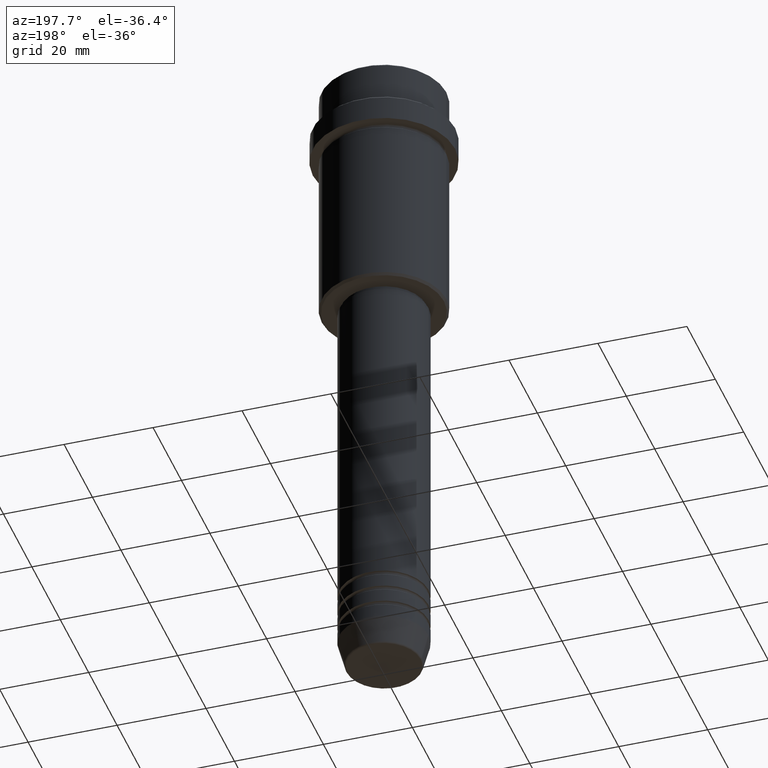
[diagram: clean part render]
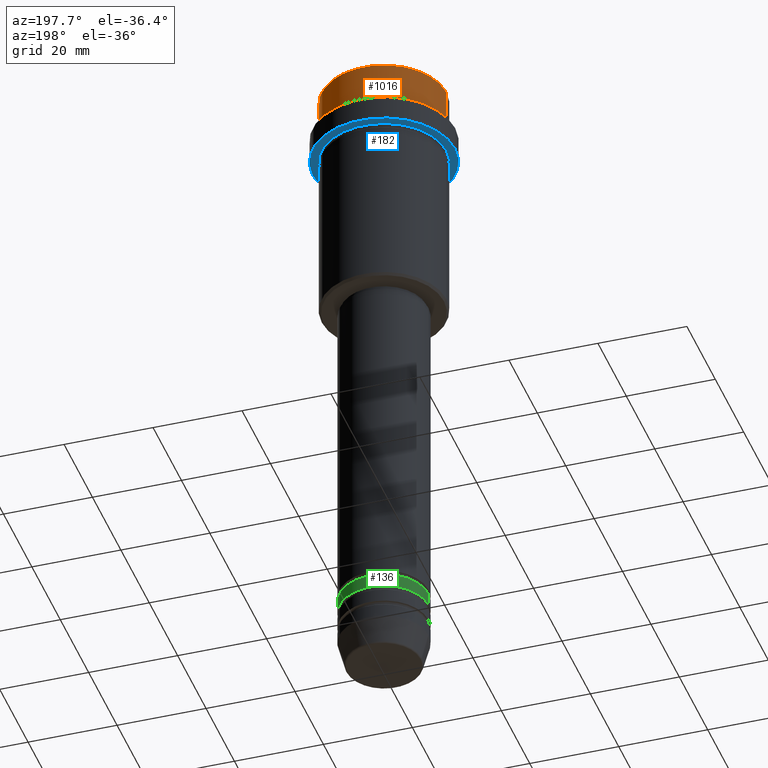
[diagram: same view with three faces highlighted in distinct colors, each labeled with its STEP entity id]
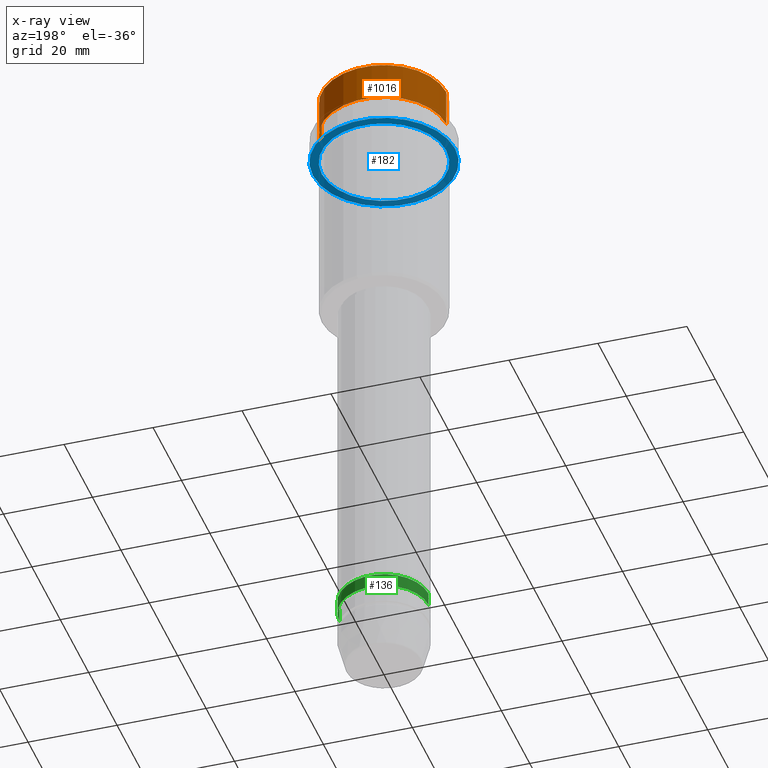
[diagram: x-ray of the same camera — body ghosted, the three highlighted faces saturated]
A machine part, auxiliary view with three faces highlighted in distinct colors.
The next image is the same camera in x-ray (body ghosted, the three faces saturated) — at least one of them is partly hidden behind the body in this view.
Their STEP definitions:

[orange] entity #1016 — the highlighted cylindrical surface (partial cylindrical patch) has radius 14 mm, axis along (-0, -0, 1).
#18 = CARTESIAN_POINT ( 'NONE',  ( 13.99999999999999112, 0.000000000000000000, -0.5000000000000125455 ) ) ;
#50 = VECTOR ( 'NONE', #102, 1000.000000000000000 ) ;
#52 = VERTEX_POINT ( 'NONE', #543 ) ;
#53 = VECTOR ( 'NONE', #680, 1000.000000000000000 ) ;
#54 = DIRECTION ( 'NONE',  ( -0.000000000000000000, -0.000000000000000000, 1.000000000000000000 ) ) ;
#73 = DIRECTION ( 'NONE',  ( 1.000000000000000000, 0.000000000000000000, 0.000000000000000000 ) ) ;
#102 = DIRECTION ( 'NONE',  ( -0.000000000000000000, -0.000000000000000000, 1.000000000000000000 ) ) ;
#135 = DIRECTION ( 'NONE',  ( -0.000000000000000000, -0.000000000000000000, 1.000000000000000000 ) ) ;
#238 = CARTESIAN_POINT ( 'NONE',  ( -13.99999999999999112, 1.714505518806293455E-15, 0.000000000000000000 ) ) ;
#259 = VERTEX_POINT ( 'NONE', #18 ) ;
#283 = CARTESIAN_POINT ( 'NONE',  ( -13.99999999999998401, 1.714505518806293060E-15, -8.999999999999998224 ) ) ;
#363 = CARTESIAN_POINT ( 'NONE',  ( -13.99999999999999112, 1.714505518806293455E-15, -0.5000000000000125455 ) ) ;
#410 = AXIS2_PLACEMENT_3D ( 'NONE', #1116, #135, #574 ) ;
#475 = VERTEX_POINT ( 'NONE', #363 ) ;
#487 = DIRECTION ( 'NONE',  ( 1.000000000000000000, 0.000000000000000000, 0.000000000000000000 ) ) ;
#543 = CARTESIAN_POINT ( 'NONE',  ( 13.99999999999998401, 0.000000000000000000, -8.999999999999998224 ) ) ;
#574 = DIRECTION ( 'NONE',  ( 1.000000000000000000, 0.000000000000000000, 0.000000000000000000 ) ) ;
#636 = AXIS2_PLACEMENT_3D ( 'NONE', #1025, #54, #487 ) ;
#641 = LINE ( 'NONE', #1078, #50 ) ;
#659 = ORIENTED_EDGE ( 'NONE', *, *, #1228, .T. ) ;
#670 = VERTEX_POINT ( 'NONE', #283 ) ;
#680 = DIRECTION ( 'NONE',  ( -0.000000000000000000, -0.000000000000000000, 1.000000000000000000 ) ) ;
#708 = AXIS2_PLACEMENT_3D ( 'NONE', #1380, #1047, #73 ) ;
#723 = ORIENTED_EDGE ( 'NONE', *, *, #1233, .T. ) ;
#786 = LINE ( 'NONE', #238, #53 ) ;
#802 = CIRCLE ( 'NONE', #708, 13.99999999999999112 ) ;
#823 = EDGE_LOOP ( 'NONE', ( #723, #659, #1210, #1339 ) ) ;
#827 = EDGE_CURVE ( 'NONE', #475, #259, #802, .T. ) ;
#932 = FACE_OUTER_BOUND ( 'NONE', #823, .T. ) ;
#980 = EDGE_CURVE ( 'NONE', #52, #259, #641, .T. ) ;
#1016 = ADVANCED_FACE ( 'NONE', ( #932 ), #1134, .T. ) ;
#1025 = CARTESIAN_POINT ( 'NONE',  ( 0.000000000000000000, 0.000000000000000000, 0.000000000000000000 ) ) ;
#1047 = DIRECTION ( 'NONE',  ( 0.000000000000000000, 0.000000000000000000, -1.000000000000000000 ) ) ;
#1078 = CARTESIAN_POINT ( 'NONE',  ( 13.99999999999999112, 0.000000000000000000, 0.000000000000000000 ) ) ;
#1116 = CARTESIAN_POINT ( 'NONE',  ( 0.000000000000000000, 0.000000000000000000, -8.999999999999998224 ) ) ;
#1134 = CYLINDRICAL_SURFACE ( 'NONE', #636, 13.99999999999999112 ) ;
#1210 = ORIENTED_EDGE ( 'NONE', *, *, #827, .T. ) ;
#1227 = CIRCLE ( 'NONE', #410, 13.99999999999998401 ) ;
#1228 = EDGE_CURVE ( 'NONE', #670, #475, #786, .T. ) ;
#1233 = EDGE_CURVE ( 'NONE', #52, #670, #1227, .T. ) ;
#1339 = ORIENTED_EDGE ( 'NONE', *, *, #980, .F. ) ;
#1380 = CARTESIAN_POINT ( 'NONE',  ( 0.000000000000000000, 0.000000000000000000, -0.5000000000000125455 ) ) ;

[blue] entity #182 — the highlighted planar face has unit normal (0, 0, -1).
#29 = AXIS2_PLACEMENT_3D ( 'NONE', #57, #154, #913 ) ;
#57 = CARTESIAN_POINT ( 'NONE',  ( 0.000000000000000000, 0.000000000000000000, -16.00000000000000000 ) ) ;
#63 = DIRECTION ( 'NONE',  ( -1.000000000000000000, 0.000000000000000000, 0.000000000000000000 ) ) ;
#81 = DIRECTION ( 'NONE',  ( 1.000000000000000000, 0.000000000000000000, 0.000000000000000000 ) ) ;
#86 = CARTESIAN_POINT ( 'NONE',  ( -15.99999999999998579, 1.959434878635763554E-15, -16.00000000000000000 ) ) ;
#94 = AXIS2_PLACEMENT_3D ( 'NONE', #619, #721, #63 ) ;
#152 = ORIENTED_EDGE ( 'NONE', *, *, #1144, .F. ) ;
#154 = DIRECTION ( 'NONE',  ( -0.000000000000000000, -0.000000000000000000, 1.000000000000000000 ) ) ;
#174 = CARTESIAN_POINT ( 'NONE',  ( 0.000000000000000000, 0.000000000000000000, -16.00000000000000000 ) ) ;
#182 = ADVANCED_FACE ( 'NONE', ( #1060, #521 ), #1414, .T. ) ;
#203 = VERTEX_POINT ( 'NONE', #563 ) ;
#246 = DIRECTION ( 'NONE',  ( 1.000000000000000000, 0.000000000000000000, 0.000000000000000000 ) ) ;
#321 = DIRECTION ( 'NONE',  ( -1.000000000000000000, 0.000000000000000000, -0.000000000000000000 ) ) ;
#337 = VERTEX_POINT ( 'NONE', #1328 ) ;
#350 = CIRCLE ( 'NONE', #94, 13.99999999999997868 ) ;
#483 = CIRCLE ( 'NONE', #757, 15.99999999999998579 ) ;
#484 = EDGE_CURVE ( 'NONE', #1284, #337, #1321, .T. ) ;
#497 = CARTESIAN_POINT ( 'NONE',  ( 13.99999999999997868, 1.714505518806292074E-15, -16.00000000000000000 ) ) ;
#521 = FACE_OUTER_BOUND ( 'NONE', #1097, .T. ) ;
#563 = CARTESIAN_POINT ( 'NONE',  ( 15.99999999999998579, 0.000000000000000000, -16.00000000000000000 ) ) ;
#619 = CARTESIAN_POINT ( 'NONE',  ( 0.000000000000000000, 0.000000000000000000, -16.00000000000000000 ) ) ;
#626 = VERTEX_POINT ( 'NONE', #86 ) ;
#703 = EDGE_CURVE ( 'NONE', #203, #626, #1067, .T. ) ;
#721 = DIRECTION ( 'NONE',  ( -0.000000000000000000, -0.000000000000000000, 1.000000000000000000 ) ) ;
#757 = AXIS2_PLACEMENT_3D ( 'NONE', #991, #899, #246 ) ;
#858 = CARTESIAN_POINT ( 'NONE',  ( 0.000000000000000000, 15.99999999999998579, -16.00000000000000000 ) ) ;
#899 = DIRECTION ( 'NONE',  ( -0.000000000000000000, -0.000000000000000000, 1.000000000000000000 ) ) ;
#913 = DIRECTION ( 'NONE',  ( -1.000000000000000000, 0.000000000000000000, 0.000000000000000000 ) ) ;
#961 = ORIENTED_EDGE ( 'NONE', *, *, #703, .F. ) ;
#962 = ORIENTED_EDGE ( 'NONE', *, *, #1344, .T. ) ;
#991 = CARTESIAN_POINT ( 'NONE',  ( 0.000000000000000000, 0.000000000000000000, -16.00000000000000000 ) ) ;
#1050 = DIRECTION ( 'NONE',  ( -0.000000000000000000, -0.000000000000000000, 1.000000000000000000 ) ) ;
#1060 = FACE_BOUND ( 'NONE', #1251, .T. ) ;
#1067 = CIRCLE ( 'NONE', #1204, 15.99999999999998579 ) ;
#1097 = EDGE_LOOP ( 'NONE', ( #961, #152 ) ) ;
#1144 = EDGE_CURVE ( 'NONE', #626, #203, #483, .T. ) ;
#1176 = AXIS2_PLACEMENT_3D ( 'NONE', #858, #1296, #321 ) ;
#1204 = AXIS2_PLACEMENT_3D ( 'NONE', #174, #1050, #81 ) ;
#1251 = EDGE_LOOP ( 'NONE', ( #962, #1272 ) ) ;
#1272 = ORIENTED_EDGE ( 'NONE', *, *, #484, .T. ) ;
#1284 = VERTEX_POINT ( 'NONE', #497 ) ;
#1296 = DIRECTION ( 'NONE',  ( 0.000000000000000000, 0.000000000000000000, -1.000000000000000000 ) ) ;
#1321 = CIRCLE ( 'NONE', #29, 13.99999999999997868 ) ;
#1328 = CARTESIAN_POINT ( 'NONE',  ( -13.99999999999997868, 0.000000000000000000, -16.00000000000000000 ) ) ;
#1344 = EDGE_CURVE ( 'NONE', #337, #1284, #350, .T. ) ;
#1414 = PLANE ( 'NONE',  #1176 ) ;

[green] entity #136 — the highlighted cylindrical surface (partial cylindrical patch) has radius 10 mm, axis along (-0, -0, 1).
#33 = ORIENTED_EDGE ( 'NONE', *, *, #383, .F. ) ;
#38 = LINE ( 'NONE', #1341, #1000 ) ;
#128 = EDGE_CURVE ( 'NONE', #892, #903, #1065, .T. ) ;
#136 = ADVANCED_FACE ( 'NONE', ( #1096 ), #201, .T. ) ;
#146 = CARTESIAN_POINT ( 'NONE',  ( 0.000000000000000000, 0.000000000000000000, -135.9999999999998863 ) ) ;
#193 = AXIS2_PLACEMENT_3D ( 'NONE', #1179, #439, #1271 ) ;
#201 = CYLINDRICAL_SURFACE ( 'NONE', #268, 10.00000000000000000 ) ;
#220 = EDGE_CURVE ( 'NONE', #534, #1164, #610, .T. ) ;
#221 = LINE ( 'NONE', #1090, #287 ) ;
#227 = EDGE_CURVE ( 'NONE', #1164, #903, #38, .T. ) ;
#231 = ORIENTED_EDGE ( 'NONE', *, *, #128, .F. ) ;
#251 = DIRECTION ( 'NONE',  ( 1.000000000000000000, 0.000000000000000000, 0.000000000000000000 ) ) ;
#268 = AXIS2_PLACEMENT_3D ( 'NONE', #427, #1306, #642 ) ;
#275 = CARTESIAN_POINT ( 'NONE',  ( -10.00000000000000000, 1.224646799147353256E-15, -132.9999999999998863 ) ) ;
#287 = VECTOR ( 'NONE', #672, 1000.000000000000000 ) ;
#349 = DIRECTION ( 'NONE',  ( -0.000000000000000000, -0.000000000000000000, 1.000000000000000000 ) ) ;
#378 = CARTESIAN_POINT ( 'NONE',  ( 10.00000000000000000, 0.000000000000000000, -132.9999999999998863 ) ) ;
#383 = EDGE_CURVE ( 'NONE', #534, #892, #221, .T. ) ;
#427 = CARTESIAN_POINT ( 'NONE',  ( 0.000000000000000000, 0.000000000000000000, 0.000000000000000000 ) ) ;
#439 = DIRECTION ( 'NONE',  ( -0.000000000000000000, -0.000000000000000000, 1.000000000000000000 ) ) ;
#534 = VERTEX_POINT ( 'NONE', #1358 ) ;
#610 = CIRCLE ( 'NONE', #1138, 10.00000000000000000 ) ;
#642 = DIRECTION ( 'NONE',  ( 1.000000000000000000, 0.000000000000000000, 0.000000000000000000 ) ) ;
#672 = DIRECTION ( 'NONE',  ( -0.000000000000000000, -0.000000000000000000, 1.000000000000000000 ) ) ;
#783 = ORIENTED_EDGE ( 'NONE', *, *, #220, .T. ) ;
#795 = DIRECTION ( 'NONE',  ( -0.000000000000000000, -0.000000000000000000, 1.000000000000000000 ) ) ;
#868 = EDGE_LOOP ( 'NONE', ( #783, #1191, #231, #33 ) ) ;
#892 = VERTEX_POINT ( 'NONE', #378 ) ;
#903 = VERTEX_POINT ( 'NONE', #275 ) ;
#1000 = VECTOR ( 'NONE', #349, 1000.000000000000000 ) ;
#1065 = CIRCLE ( 'NONE', #193, 10.00000000000000000 ) ;
#1090 = CARTESIAN_POINT ( 'NONE',  ( 10.00000000000000000, 0.000000000000000000, 0.000000000000000000 ) ) ;
#1096 = FACE_OUTER_BOUND ( 'NONE', #868, .T. ) ;
#1138 = AXIS2_PLACEMENT_3D ( 'NONE', #146, #795, #251 ) ;
#1164 = VERTEX_POINT ( 'NONE', #1208 ) ;
#1179 = CARTESIAN_POINT ( 'NONE',  ( 0.000000000000000000, 0.000000000000000000, -132.9999999999998863 ) ) ;
#1191 = ORIENTED_EDGE ( 'NONE', *, *, #227, .T. ) ;
#1208 = CARTESIAN_POINT ( 'NONE',  ( -10.00000000000000000, 1.224646799147353256E-15, -135.9999999999998863 ) ) ;
#1271 = DIRECTION ( 'NONE',  ( 1.000000000000000000, 0.000000000000000000, 0.000000000000000000 ) ) ;
#1306 = DIRECTION ( 'NONE',  ( -0.000000000000000000, -0.000000000000000000, 1.000000000000000000 ) ) ;
#1341 = CARTESIAN_POINT ( 'NONE',  ( -10.00000000000000000, 1.224646799147353256E-15, 0.000000000000000000 ) ) ;
#1358 = CARTESIAN_POINT ( 'NONE',  ( 10.00000000000000000, 0.000000000000000000, -135.9999999999998863 ) ) ;